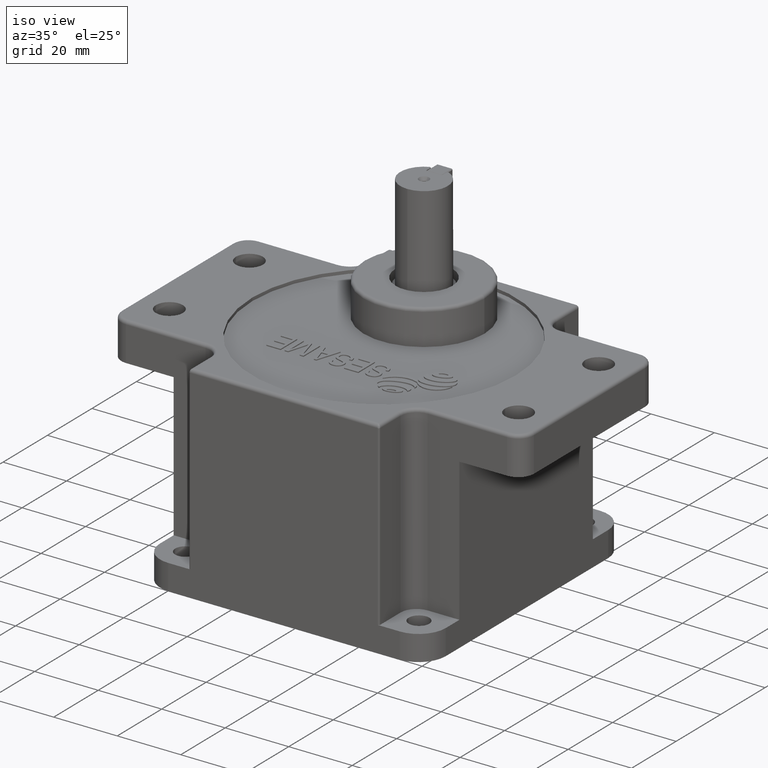
[diagram: clean part render]
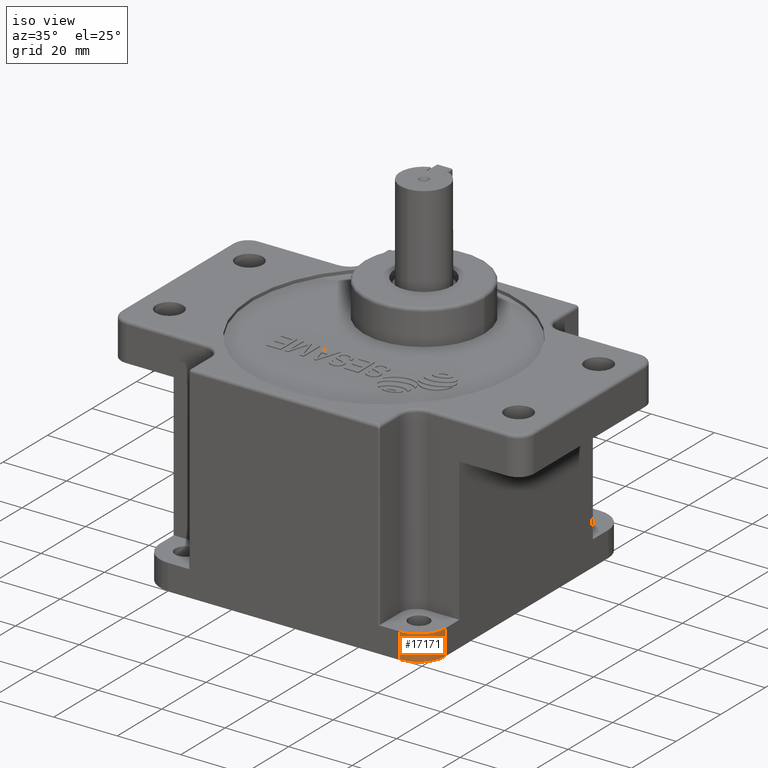
[diagram: same view with one face highlighted and labeled with its STEP entity id]
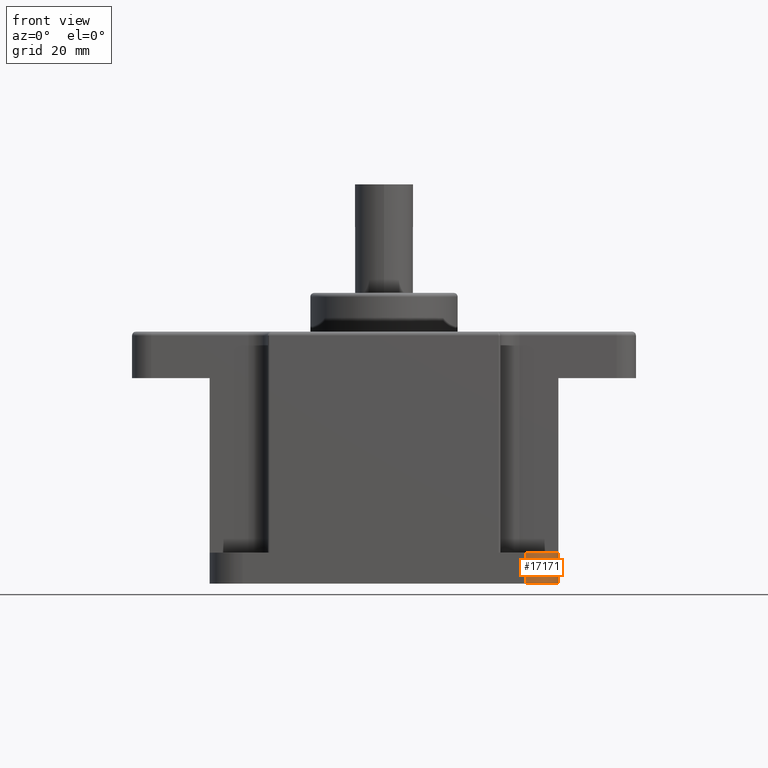
[diagram: same view with one face highlighted and labeled with its STEP entity id]
A machine part, iso view. The second image highlights one B-rep face of the part: STEP entity #17171.
A second angle (front view) of the same face is appended — the face is thin or edge-on in the first view.
In plain terms, the highlighted cylindrical surface (edge-blend (fillet) strip) has radius 8.5 mm, axis along (-0, 0, -1).
Its self-contained STEP definition (entity closure, byte-faithful):
#1650 = EDGE_LOOP ( 'NONE', ( #1661, #1655, #1659, #1660 ) ) ;
#1655 = ORIENTED_EDGE ( 'NONE', *, *, #1669, .T. ) ;
#1659 = ORIENTED_EDGE ( 'NONE', *, *, #1675, .T. ) ;
#1660 = ORIENTED_EDGE ( 'NONE', *, *, #3410, .F. ) ;
#1661 = ORIENTED_EDGE ( 'NONE', *, *, #18081, .F. ) ;
#1668 = VERTEX_POINT ( 'NONE', #6848 ) ;
#1669 = EDGE_CURVE ( 'NONE', #1676, #1668, #6852, .T. ) ;
#1675 = EDGE_CURVE ( 'NONE', #1668, #3375, #6884, .T. ) ;
#1676 = VERTEX_POINT ( 'NONE', #6882 ) ;
#3375 = VERTEX_POINT ( 'NONE', #10332 ) ;
#3410 = EDGE_CURVE ( 'NONE', #3476, #3375, #10438, .T. ) ;
#3476 = VERTEX_POINT ( 'NONE', #10556 ) ;
#6837 = CARTESIAN_POINT ( 'NONE',  ( -36.50000000000003600, -36.50000000000001400, 0.0000000000000000000 ) ) ;
#6848 = CARTESIAN_POINT ( 'NONE',  ( -36.49999999999997200, -45.00000000000001400, 0.0000000000000000000 ) ) ;
#6852 = LINE ( 'NONE', #6887, #6886 ) ;
#6875 = DIRECTION ( 'NONE',  ( 1.000000000000000000, 1.632680918566406600E-015, 0.0000000000000000000 ) ) ;
#6876 = DIRECTION ( 'NONE',  ( 0.0000000000000000000, -0.0000000000000000000, -1.000000000000000000 ) ) ;
#6877 = AXIS2_PLACEMENT_3D ( 'NONE', #6837, #6876, #6875 ) ;
#6882 = CARTESIAN_POINT ( 'NONE',  ( -36.49999999999997200, -45.00000000000001400, -8.000000000000000000 ) ) ;
#6884 = CIRCLE ( 'NONE', #6877, 8.500000000000000000 ) ;
#6885 = DIRECTION ( 'NONE',  ( 0.0000000000000000000, 0.0000000000000000000, 1.000000000000000000 ) ) ;
#6886 = VECTOR ( 'NONE', #6885, 1000.000000000000000 ) ;
#6887 = CARTESIAN_POINT ( 'NONE',  ( -36.49999999999997200, -45.00000000000001400, -65.00000000000000000 ) ) ;
#10332 = CARTESIAN_POINT ( 'NONE',  ( -45.00000000000003600, -36.49999999999995000, 0.0000000000000000000 ) ) ;
#10431 = DIRECTION ( 'NONE',  ( 0.0000000000000000000, 0.0000000000000000000, 1.000000000000000000 ) ) ;
#10432 = VECTOR ( 'NONE', #10431, 1000.000000000000000 ) ;
#10437 = CARTESIAN_POINT ( 'NONE',  ( -45.00000000000003600, -36.49999999999995000, -65.00000000000000000 ) ) ;
#10438 = LINE ( 'NONE', #10437, #10432 ) ;
#10556 = CARTESIAN_POINT ( 'NONE',  ( -45.00000000000003600, -36.50000000000001400, -8.000000000000000000 ) ) ;
#11926 = AXIS2_PLACEMENT_3D ( 'NONE', #12043, #12044, #12041 ) ;
#11932 = FACE_OUTER_BOUND ( 'NONE', #1650, .T. ) ;
#12016 = CYLINDRICAL_SURFACE ( 'NONE', #11926, 8.500000000000000000 ) ;
#12041 = DIRECTION ( 'NONE',  ( 1.000000000000000000, 0.0000000000000000000, 0.0000000000000000000 ) ) ;
#12043 = CARTESIAN_POINT ( 'NONE',  ( -36.50000000000003600, -36.50000000000001400, -65.00000000000000000 ) ) ;
#12044 = DIRECTION ( 'NONE',  ( 0.0000000000000000000, 0.0000000000000000000, 1.000000000000000000 ) ) ;
#14814 = DIRECTION ( 'NONE',  ( -1.000000000000000000, 0.0000000000000000000, 0.0000000000000000000 ) ) ;
#14815 = DIRECTION ( 'NONE',  ( 0.0000000000000000000, 0.0000000000000000000, -1.000000000000000000 ) ) ;
#14816 = CARTESIAN_POINT ( 'NONE',  ( -36.50000000000003600, -36.50000000000001400, -8.000000000000000000 ) ) ;
#14821 = AXIS2_PLACEMENT_3D ( 'NONE', #14816, #14815, #14814 ) ;
#14824 = CIRCLE ( 'NONE', #14821, 8.500000000000000000 ) ;
#17171 = ADVANCED_FACE ( 'NONE', ( #11932 ), #12016, .T. ) ;
#18081 = EDGE_CURVE ( 'NONE', #1676, #3476, #14824, .T. ) ;